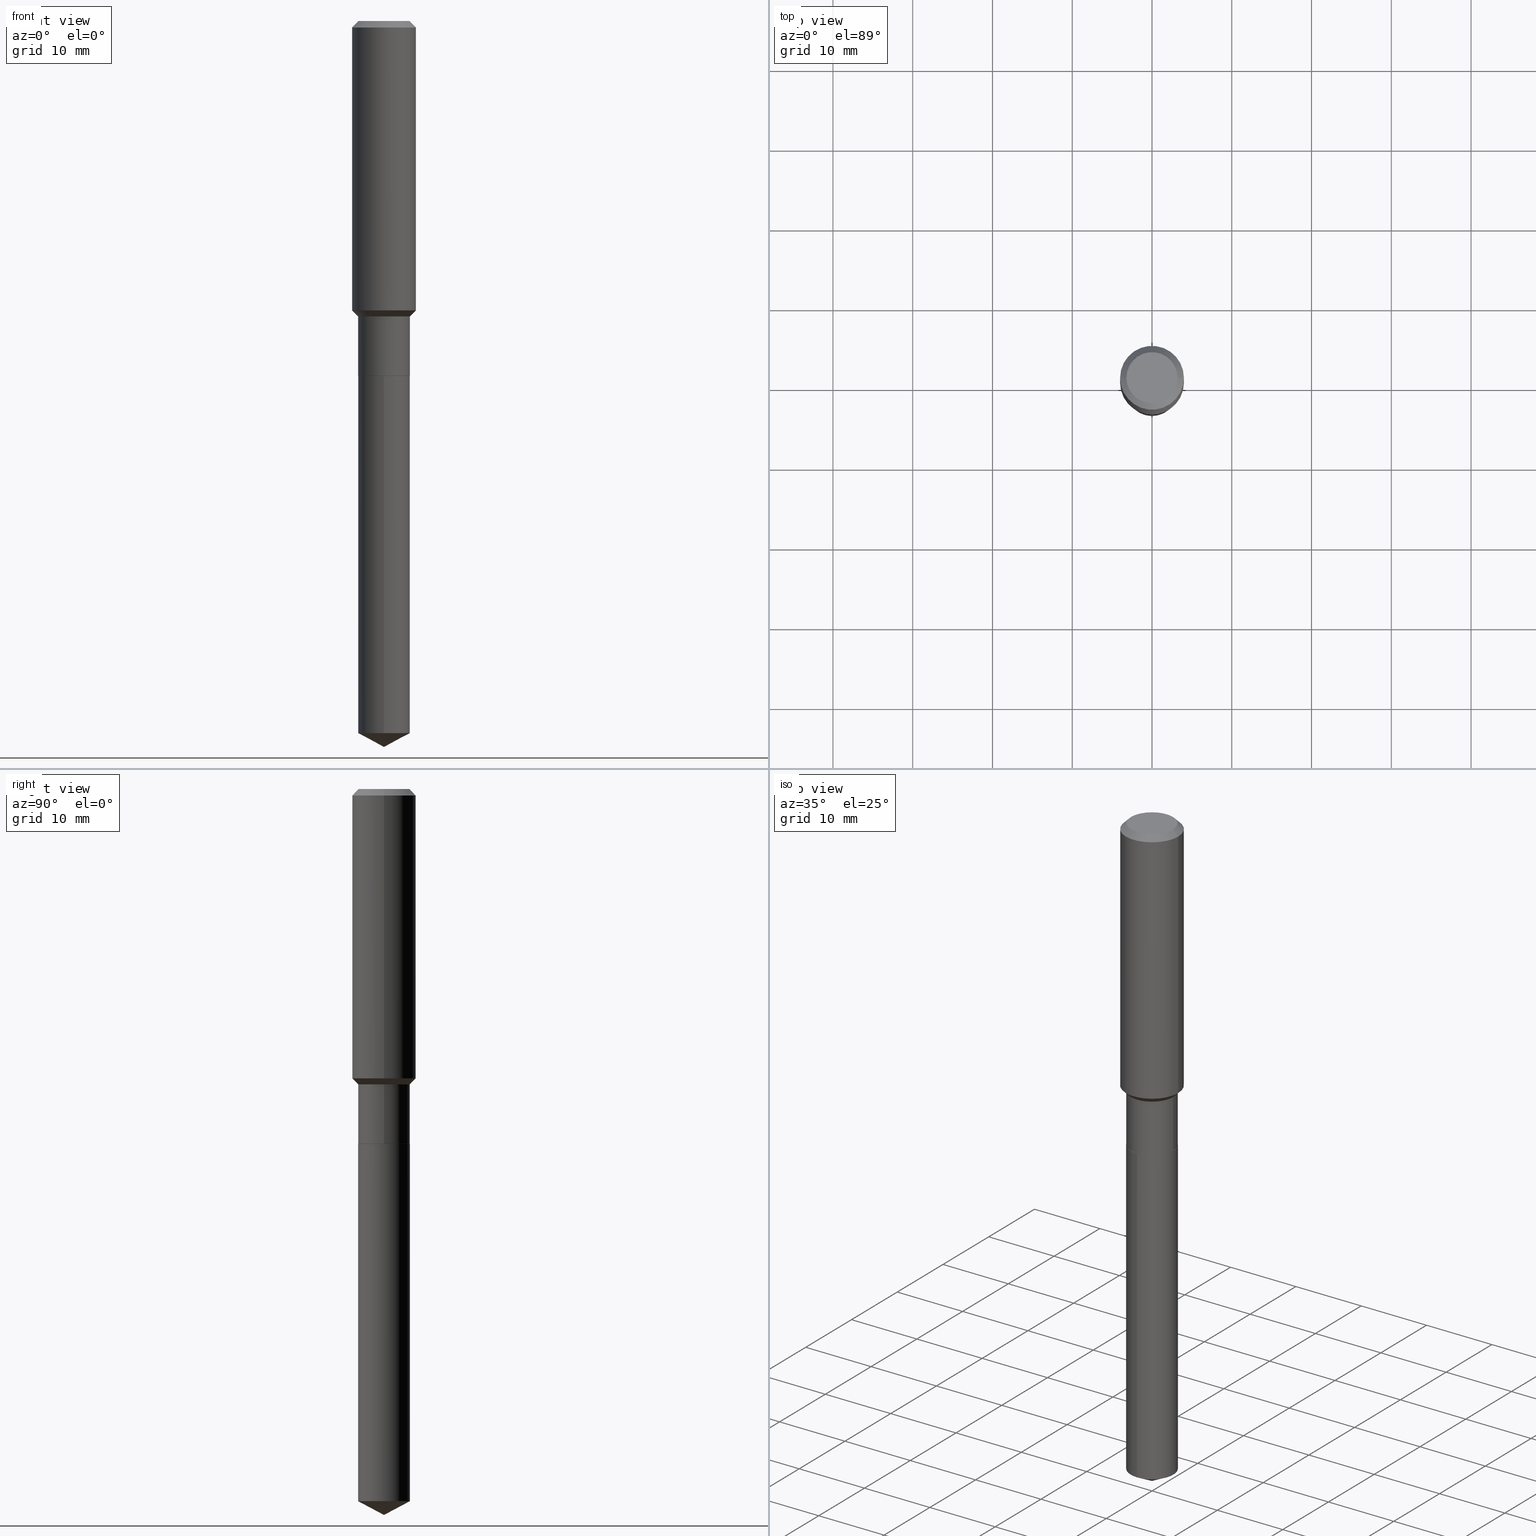
[diagram: canonical four-view strip — front | top / right | iso, engineering-drawing reading convention]
A machine part, canonical four-view strip (front | top / right | iso — engineering-drawing reading convention). The complete STEP part file that produces these views, byte-faithful:
ISO-10303-21;
HEADER;
FILE_DESCRIPTION (( 'STEP AP203' ),
    '1' );
FILE_NAME ('64835.STEP',
    '2024-04-24T19:07:18',
    ( '' ),
    ( '' ),
    'SwSTEP 2.0',
    'SolidWorks 2023',
    '' );
FILE_SCHEMA (( 'CONFIG_CONTROL_DESIGN' ));
ENDSEC;

DATA;
#1 = DIRECTION ( 'NONE',  ( -2.445468806185136597E-29, 3.491481338843145583E-15, 1.000000000000000000 ) ) ;
#2 = ORIENTED_EDGE ( 'NONE', *, *, #210, .F. ) ;
#3 = DIRECTION ( 'NONE',  ( -2.445453981402094289E-29, 3.491502568776236495E-15, 1.000000000000000000 ) ) ;
#4 = VERTEX_POINT ( 'NONE', #270 ) ;
#5 = AXIS2_PLACEMENT_3D ( 'NONE', #290, #214, #324 ) ;
#6 = DIRECTION ( 'NONE',  ( -6.982962677686266711E-15, -1.000000000000000000, 4.270180529369696392E-15 ) ) ;
#7 = ORIENTED_EDGE ( 'NONE', *, *, #29, .F. ) ;
#8 = DATE_TIME_ROLE ( 'classification_date' ) ;
#9 = ADVANCED_FACE ( 'NONE', ( #390 ), #467, .T. ) ;
#10 = ORIENTED_EDGE ( 'NONE', *, *, #163, .T. ) ;
#11 = CC_DESIGN_PERSON_AND_ORGANIZATION_ASSIGNMENT ( #389, #51, ( #105 ) ) ;
#12 = AXIS2_PLACEMENT_3D ( 'NONE', #47, #306, #54 ) ;
#13 = FACE_OUTER_BOUND ( 'NONE', #100, .T. ) ;
#14 = PERSON_AND_ORGANIZATION ( #153, #294 ) ;
#15 = DIRECTION ( 'NONE',  ( 1.000000000000000000, -6.982962677686265922E-15, 0.000000000000000000 ) ) ;
#16 = ADVANCED_FACE ( 'NONE', ( #462 ), #285, .T. ) ;
#17 = PERSON_AND_ORGANIZATION_ROLE ( 'creator' ) ;
#18 = DIRECTION ( 'NONE',  ( 1.000000000000000000, -6.982962677686269866E-15, 0.000000000000000000 ) ) ;
#19 = COORDINATED_UNIVERSAL_TIME_OFFSET ( 5, 0, .BEHIND. ) ;
#20 = CARTESIAN_POINT ( 'NONE',  ( -0.1575000000000000011, -1.429065559299040858E-15, -0.03150000000000019451 ) ) ;
#21 = LINE ( 'NONE', #116, #343 ) ;
#22 = SHAPE_DEFINITION_REPRESENTATION ( #99, #64 ) ;
#23 = LINE ( 'NONE', #475, #319 ) ;
#24 = ORIENTED_EDGE ( 'NONE', *, *, #145, .F. ) ;
#25 = FACE_OUTER_BOUND ( 'NONE', #382, .T. ) ;
#26 = PRODUCT ( '64835', '64835', '', ( #228 ) ) ;
#27 = LINE ( 'NONE', #98, #273 ) ;
#28 = CIRCLE ( 'NONE', #95, 0.1260000000000000009 ) ;
#29 = EDGE_CURVE ( 'NONE', #113, #300, #220, .T. ) ;
#30 = CARTESIAN_POINT ( 'NONE',  ( -0.1279499999999999804, -4.180392917226605207E-15, -1.457700000000000218 ) ) ;
#31 = FACE_OUTER_BOUND ( 'NONE', #109, .T. ) ;
#32 = ORIENTED_EDGE ( 'NONE', *, *, #482, .F. ) ;
#33 = AXIS2_PLACEMENT_3D ( 'NONE', #202, #437, #402 ) ;
#34 = CARTESIAN_POINT ( 'NONE',  ( 8.594984284570985817E-29, -1.227143438120363125E-14, -3.514667778218913963 ) ) ;
#35 = EDGE_LOOP ( 'NONE', ( #10, #340, #104, #2 ) ) ;
#36 = DIRECTION ( 'NONE',  ( 2.445468806185136597E-29, -3.491481338843145583E-15, -1.000000000000000000 ) ) ;
#37 = ORIENTED_EDGE ( 'NONE', *, *, #334, .F. ) ;
#38 = AXIS2_PLACEMENT_3D ( 'NONE', #268, #310, #385 ) ;
#39 = FACE_OUTER_BOUND ( 'NONE', #120, .T. ) ;
#40 = ORIENTED_EDGE ( 'NONE', *, *, #447, .T. ) ;
#41 = EDGE_CURVE ( 'NONE', #289, #460, #206, .T. ) ;
#42 = CONICAL_SURFACE ( 'NONE', #33, 0.1279499999999999804, 0.7853981633974520538 ) ;
#43 = EDGE_CURVE ( 'NONE', #168, #322, #464, .T. ) ;
#44 = PERSON_AND_ORGANIZATION_ROLE ( 'design_supplier' ) ;
#45 = ORIENTED_EDGE ( 'NONE', *, *, #263, .T. ) ;
#46 = CARTESIAN_POINT ( 'NONE',  ( 0.000000000000000000, 0.000000000000000000, 0.000000000000000000 ) ) ;
#47 = CARTESIAN_POINT ( 'NONE',  ( 3.492496275553303291E-29, -4.986359074068839042E-15, -1.428150000000000253 ) ) ;
#48 = DATE_AND_TIME ( #433, #456 ) ;
#49 = ORIENTED_EDGE ( 'NONE', *, *, #353, .T. ) ;
#50 = CC_DESIGN_PERSON_AND_ORGANIZATION_ASSIGNMENT ( #344, #428, ( #26 ) ) ;
#51 = PERSON_AND_ORGANIZATION_ROLE ( 'creator' ) ;
#52 = CIRCLE ( 'NONE', #209, 0.1279500000000000082 ) ;
#53 = CARTESIAN_POINT ( 'NONE',  ( -0.1260000000000000009, 9.348441284752484904E-16, 3.860086710906114178E-18 ) ) ;
#54 = DIRECTION ( 'NONE',  ( 1.000000000000000000, -6.982962677686267499E-15, 0.000000000000000000 ) ) ;
#55 = CARTESIAN_POINT ( 'NONE',  ( 0.1279499999999999804, -5.983002422241610534E-15, -1.457700000000000218 ) ) ;
#56 = EDGE_CURVE ( 'NONE', #337, #134, #277, .T. ) ;
#57 = DIRECTION ( 'NONE',  ( -2.445453981402094289E-29, 3.491502568776236889E-15, 1.000000000000000000 ) ) ;
#58 = CARTESIAN_POINT ( 'NONE',  ( 4.284461348436360250E-29, -6.117075305653192263E-15, -1.752000000000000224 ) ) ;
#59 = ORIENTED_EDGE ( 'NONE', *, *, #126, .F. ) ;
#60 = DIRECTION ( 'NONE',  ( -2.445468806185136877E-29, 3.491481338843145188E-15, 1.000000000000000000 ) ) ;
#61 = EDGE_CURVE ( 'NONE', #289, #113, #197, .T. ) ;
#62 = DIRECTION ( 'NONE',  ( 6.982962677686265922E-15, 1.000000000000000000, -3.491502568776236889E-15 ) ) ;
#63 = CARTESIAN_POINT ( 'NONE',  ( 8.761327979169282091E-29, -1.250900625315462083E-14, -3.582699999999999996 ) ) ;
#64 = ADVANCED_BREP_SHAPE_REPRESENTATION ( '64835', ( #414, #84, #201 ), #241 ) ;
#65 = VERTEX_POINT ( 'NONE', #53 ) ;
#66 = CIRCLE ( 'NONE', #387, 0.1260000000000000009 ) ;
#67 = FACE_OUTER_BOUND ( 'NONE', #380, .T. ) ;
#68 = CIRCLE ( 'NONE', #326, 0.1279499999999999804 ) ;
#69 = ORIENTED_EDGE ( 'NONE', *, *, #43, .T. ) ;
#70 = AXIS2_PLACEMENT_3D ( 'NONE', #34, #218, #258 ) ;
#71 = DIRECTION ( 'NONE',  ( 1.000000000000000000, -6.982962677686267499E-15, 0.000000000000000000 ) ) ;
#72 = VERTEX_POINT ( 'NONE', #434 ) ;
#73 = DIRECTION ( 'NONE',  ( 2.438088387897960049E-29, -3.491481338843145188E-15, -1.000000000000000000 ) ) ;
#74 = ORIENTED_EDGE ( 'NONE', *, *, #174, .T. ) ;
#75 = CC_DESIGN_DATE_AND_TIME_ASSIGNMENT ( #471, #8, ( #234 ) ) ;
#76 = EDGE_CURVE ( 'NONE', #256, #337, #429, .T. ) ;
#77 = CARTESIAN_POINT ( 'NONE',  ( -4.719860820353100843E-47, 6.738710358733633822E-33, 1.930043355456229866E-18 ) ) ;
#78 = ORIENTED_EDGE ( 'NONE', *, *, #232, .F. ) ;
#79 = CIRCLE ( 'NONE', #117, 0.1575000000000001676 ) ;
#80 = CARTESIAN_POINT ( 'NONE',  ( -0.1575000000000000011, 9.898349595620272334E-16, -0.03150000000000019451 ) ) ;
#81 = DIRECTION ( 'NONE',  ( -2.445468806185136597E-29, 3.491481338843145583E-15, 1.000000000000000000 ) ) ;
#82 = CLOSED_SHELL ( 'NONE', ( #468, #408, #191, #247, #432, #127, #224, #96, #16, #417, #183, #354 ) ) ;
#83 = APPROVAL_STATUS ( 'not_yet_approved' ) ;
#84 = MANIFOLD_SOLID_BREP ( 'Body-Move/Copy2[2]', #82 ) ;
#85 = CARTESIAN_POINT ( 'NONE',  ( 4.283238614033268009E-29, -6.115329564983771548E-15, -1.751500000000000501 ) ) ;
#86 = CALENDAR_DATE ( 2024, 24, 4 ) ;
#87 = CC_DESIGN_APPROVAL ( #160, ( #105 ) ) ;
#88 = CARTESIAN_POINT ( 'NONE',  ( 3.564759878776074518E-29, -5.089532347631653453E-15, -1.457700000000000218 ) ) ;
#89 = PERSON_AND_ORGANIZATION ( #153, #294 ) ;
#90 = CARTESIAN_POINT ( 'NONE',  ( 8.761380380714512831E-29, -1.250893186346907260E-14, -3.582699999999999996 ) ) ;
#91 = EDGE_CURVE ( 'NONE', #256, #72, #237, .T. ) ;
#92 = EDGE_CURVE ( 'NONE', #282, #300, #159, .T. ) ;
#93 = LINE ( 'NONE', #478, #345 ) ;
#94 = DIRECTION ( 'NONE',  ( 1.000000000000000000, -6.982962677686265922E-15, 4.876176775795935793E-29 ) ) ;
#95 = AXIS2_PLACEMENT_3D ( 'NONE', #381, #143, #106 ) ;
#96 = ADVANCED_FACE ( 'NONE', ( #470 ), #122, .T. ) ;
#97 = DIRECTION ( 'NONE',  ( -2.445468806185136597E-29, 3.491481338843145583E-15, 1.000000000000000000 ) ) ;
#98 = CARTESIAN_POINT ( 'NONE',  ( 0.1279500000000000082, -8.934700746099578698E-16, 6.239068184630899488E-30 ) ) ;
#99 = PRODUCT_DEFINITION_SHAPE ( 'NONE', 'NONE',  #105 ) ;
#100 = EDGE_LOOP ( 'NONE', ( #333, #246, #131, #458 ) ) ;
#101 = CARTESIAN_POINT ( 'NONE',  ( 0.1575000000000000844, -1.099816621735587677E-15, 7.679978421878603638E-30 ) ) ;
#102 = AXIS2_PLACEMENT_3D ( 'NONE', #77, #73, #485 ) ;
#103 = DIRECTION ( 'NONE',  ( -6.982962677686266711E-15, -1.000000000000000000, 4.270180529369696392E-15 ) ) ;
#104 = ORIENTED_EDGE ( 'NONE', *, *, #445, .F. ) ;
#105 = PRODUCT_DEFINITION ( 'UNKNOWN', '', #328, #155 ) ;
#106 = DIRECTION ( 'NONE',  ( 1.000000000000000000, -6.982962677686265922E-15, 4.876281427513067258E-29 ) ) ;
#107 = ORIENTED_EDGE ( 'NONE', *, *, #313, .F. ) ;
#108 = DIRECTION ( 'NONE',  ( -6.982962677686266711E-15, -1.000000000000000000, 3.541896320645561263E-15 ) ) ;
#109 = EDGE_LOOP ( 'NONE', ( #193, #293, #455, #222 ) ) ;
#110 = CONICAL_SURFACE ( 'NONE', #450, 74.04434902938352536, 1.082104136236486491 ) ;
#111 = CARTESIAN_POINT ( 'NONE',  ( 4.283238614033268009E-29, -6.115329564983771548E-15, -1.751500000000000501 ) ) ;
#112 = CC_DESIGN_PERSON_AND_ORGANIZATION_ASSIGNMENT ( #469, #299, ( #234 ) ) ;
#113 = VERTEX_POINT ( 'NONE', #20 ) ;
#114 = DIRECTION ( 'NONE',  ( 1.000000000000000000, -6.982962677686266711E-15, 4.876176775795935232E-29 ) ) ;
#115 = EDGE_LOOP ( 'NONE', ( #59, #251, #261, #24 ) ) ;
#116 = CARTESIAN_POINT ( 'NONE',  ( -0.1274500000000000077, -5.211488588926944916E-15, -1.752000000000000224 ) ) ;
#117 = AXIS2_PLACEMENT_3D ( 'NONE', #332, #370, #71 ) ;
#118 = COORDINATED_UNIVERSAL_TIME_OFFSET ( 5, 0, .BEHIND. ) ;
#119 = ORIENTED_EDGE ( 'NONE', *, *, #269, .F. ) ;
#120 = EDGE_LOOP ( 'NONE', ( #418, #189, #446, #173 ) ) ;
#121 = COORDINATED_UNIVERSAL_TIME_OFFSET ( 5, 0, .BEHIND. ) ;
#122 = CYLINDRICAL_SURFACE ( 'NONE', #476, 0.1575000000000000844 ) ;
#123 = APPLICATION_CONTEXT ( 'configuration controlled 3d designs of mechanical parts and assemblies' ) ;
#124 = DATE_TIME_ROLE ( 'creation_date' ) ;
#125 = DIRECTION ( 'NONE',  ( 1.000000000000000000, -6.982962677686265922E-15, 4.876281427513067258E-29 ) ) ;
#126 = EDGE_CURVE ( 'NONE', #282, #65, #66, .T. ) ;
#127 = ADVANCED_FACE ( 'NONE', ( #13 ), #396, .T. ) ;
#128 = FACE_OUTER_BOUND ( 'NONE', #254, .T. ) ;
#129 = CARTESIAN_POINT ( 'NONE',  ( -8.751636185104288429E-28, 1.249517619958706967E-13, 35.78737874015747877 ) ) ;
#130 = AXIS2_PLACEMENT_3D ( 'NONE', #303, #97, #243 ) ;
#131 = ORIENTED_EDGE ( 'NONE', *, *, #296, .T. ) ;
#132 = DIRECTION ( 'NONE',  ( 1.000000000000000000, -6.982962677686263555E-15, 0.000000000000000000 ) ) ;
#133 = CIRCLE ( 'NONE', #148, 0.1279500000000000082 ) ;
#134 = VERTEX_POINT ( 'NONE', #55 ) ;
#135 = DIRECTION ( 'NONE',  ( -6.165590087286835240E-15, -0.8829475928589263223, 0.4694715627858919715 ) ) ;
#136 = CYLINDRICAL_SURFACE ( 'NONE', #233, 0.1575000000000000844 ) ;
#137 = AXIS2_PLACEMENT_3D ( 'NONE', #88, #81, #351 ) ;
#138 = CARTESIAN_POINT ( 'NONE',  ( 8.594984284570985817E-29, -1.227143438120363125E-14, -3.514667778218913963 ) ) ;
#139 = EDGE_CURVE ( 'NONE', #4, #256, #21, .T. ) ;
#140 = CIRCLE ( 'NONE', #70, 0.1279500000000000082 ) ;
#141 = CARTESIAN_POINT ( 'NONE',  ( 7.703226739483228723E-31, -1.099816621735597661E-16, -0.03150000000000019451 ) ) ;
#142 = ORIENTED_EDGE ( 'NONE', *, *, #91, .F. ) ;
#143 = DIRECTION ( 'NONE',  ( -2.445468806185136597E-29, 3.491481338843145583E-15, 1.000000000000000000 ) ) ;
#144 = ORIENTED_EDGE ( 'NONE', *, *, #263, .F. ) ;
#145 = EDGE_CURVE ( 'NONE', #65, #113, #425, .T. ) ;
#146 = PLANE ( 'NONE',  #102 ) ;
#147 = VERTEX_POINT ( 'NONE', #342 ) ;
#148 = AXIS2_PLACEMENT_3D ( 'NONE', #138, #330, #419 ) ;
#149 = CARTESIAN_POINT ( 'NONE',  ( 4.284461348436360250E-29, -6.117075305653192263E-15, -1.752000000000000224 ) ) ;
#150 = ORIENTED_EDGE ( 'NONE', *, *, #61, .T. ) ;
#151 = APPROVAL_ROLE ( '' ) ;
#152 = EDGE_LOOP ( 'NONE', ( #413, #479 ) ) ;
#153 = PERSON ( 'UNSPECIFIED', 'UNSPECIFIED', 'UNSPECIFIED', ('UNSPECIFIED'), ('UNSPECIFIED'), ('UNSPECIFIED') ) ;
#154 = APPLICATION_PROTOCOL_DEFINITION ( 'international standard', 'config_control_design', 1994, #238 ) ;
#155 = DESIGN_CONTEXT ( 'detailed design', #238, 'design' ) ;
#156 = DIRECTION ( 'NONE',  ( -0.7071067811865451302, 2.468850131082231817E-15, -0.7071067811865499042 ) ) ;
#157 = DIRECTION ( 'NONE',  ( -6.982962677686266711E-15, -1.000000000000000000, 4.270180529369696392E-15 ) ) ;
#158 = CALENDAR_DATE ( 2024, 24, 4 ) ;
#159 = LINE ( 'NONE', #166, #397 ) ;
#160 = APPROVAL ( #83, 'UNSPECIFIED' ) ;
#161 =( NAMED_UNIT ( * ) PLANE_ANGLE_UNIT ( ) SI_UNIT ( $, .RADIAN. ) );
#162 = VECTOR ( 'NONE', #248, 39.37007874015748143 ) ;
#163 = EDGE_CURVE ( 'NONE', #406, #4, #436, .T. ) ;
#164 = CARTESIAN_POINT ( 'NONE',  ( 0.000000000000000000, 0.000000000000000000, 0.000000000000000000 ) ) ;
#165 = CIRCLE ( 'NONE', #448, 0.1279500000000000082 ) ;
#166 = CARTESIAN_POINT ( 'NONE',  ( 0.1575000000000000011, -1.190510096822576026E-15, -0.03150000000000019451 ) ) ;
#167 = LINE ( 'NONE', #281, #297 ) ;
#168 = VERTEX_POINT ( 'NONE', #63 ) ;
#169 = PLANE ( 'NONE',  #412 ) ;
#170 = DIRECTION ( 'NONE',  ( -2.445468806185136597E-29, 3.491481338843145583E-15, 1.000000000000000000 ) ) ;
#171 = AXIS2_PLACEMENT_3D ( 'NONE', #149, #287, #409 ) ;
#172 = CARTESIAN_POINT ( 'NONE',  ( 9.091394304050910416E-16, 0.1279499999999939019, -1.752000000000000890 ) ) ;
#173 = ORIENTED_EDGE ( 'NONE', *, *, #296, .F. ) ;
#174 = EDGE_CURVE ( 'NONE', #337, #289, #398, .T. ) ;
#175 = DIRECTION ( 'NONE',  ( 1.000000000000000000, -6.982962677686265922E-15, 0.000000000000000000 ) ) ;
#176 = CC_DESIGN_DATE_AND_TIME_ASSIGNMENT ( #264, #124, ( #105 ) ) ;
#177 = AXIS2_PLACEMENT_3D ( 'NONE', #164, #274, #236 ) ;
#178 = CARTESIAN_POINT ( 'NONE',  ( 4.284461348436360250E-29, -6.117075305653192263E-15, -1.752000000000000224 ) ) ;
#179 = ORIENTED_EDGE ( 'NONE', *, *, #362, .F. ) ;
#180 = CIRCLE ( 'NONE', #5, 0.1274500000000000077 ) ;
#181 = CARTESIAN_POINT ( 'NONE',  ( -0.1279499999999999804, -4.693291525902664255E-15, -1.457700000000000218 ) ) ;
#182 = ORIENTED_EDGE ( 'NONE', *, *, #283, .T. ) ;
#183 = ADVANCED_FACE ( 'NONE', ( #239 ), #169, .F. ) ;
#184 = DIRECTION ( 'NONE',  ( -1.000000000000000000, 6.982962677686265922E-15, 0.000000000000000000 ) ) ;
#185 = ORIENTED_EDGE ( 'NONE', *, *, #29, .T. ) ;
#186 = FACE_OUTER_BOUND ( 'NONE', #35, .T. ) ;
#187 = ORIENTED_EDGE ( 'NONE', *, *, #353, .F. ) ;
#188 = LOCAL_TIME ( 15, 7, 18.00000000000000000, #121 ) ;
#189 = ORIENTED_EDGE ( 'NONE', *, *, #76, .T. ) ;
#190 =( CONVERSION_BASED_UNIT ( 'INCH', #230 ) LENGTH_UNIT ( ) NAMED_UNIT ( #488 ) );
#191 = ADVANCED_FACE ( 'NONE', ( #366 ), #136, .T. ) ;
#192 = DIRECTION ( 'NONE',  ( -2.445468806185136597E-29, 3.491481338843145583E-15, 1.000000000000000000 ) ) ;
#193 = ORIENTED_EDGE ( 'NONE', *, *, #174, .F. ) ;
#194 = APPROVAL_PERSON_ORGANIZATION ( #302, #160, #392 ) ;
#195 = APPROVAL_DATE_TIME ( #48, #463 ) ;
#196 = CC_DESIGN_SECURITY_CLASSIFICATION ( #234, ( #328 ) ) ;
#197 = LINE ( 'NONE', #229, #301 ) ;
#198 = ADVANCED_FACE ( 'NONE', ( #25 ), #110, .T. ) ;
#199 = DIRECTION ( 'NONE',  ( 6.273719981627764499E-15, 0.8829475928589295419, 0.4694715627858856433 ) ) ;
#200 = DIRECTION ( 'NONE',  ( -2.445453981402094289E-29, 3.491502568776236495E-15, 1.000000000000000000 ) ) ;
#201 = AXIS2_PLACEMENT_3D ( 'NONE', #46, #305, #466 ) ;
#202 = CARTESIAN_POINT ( 'NONE',  ( 3.564759878776074518E-29, -5.089532347631653453E-15, -1.457700000000000218 ) ) ;
#203 = EDGE_LOOP ( 'NONE', ( #215, #368 ) ) ;
#204 = CARTESIAN_POINT ( 'NONE',  ( 4.284461348436360250E-29, -6.117075305653192263E-15, -1.752000000000000224 ) ) ;
#205 = ORIENTED_EDGE ( 'NONE', *, *, #245, .T. ) ;
#206 = CIRCLE ( 'NONE', #12, 0.1575000000000001676 ) ;
#207 = DIRECTION ( 'NONE',  ( 0.7071067811865501263, -2.468850131082283882E-15, 0.7071067811865449082 ) ) ;
#208 = CARTESIAN_POINT ( 'NONE',  ( 0.1575000000000000011, -1.209798283909146741E-15, -0.03150000000000019451 ) ) ;
#209 = AXIS2_PLACEMENT_3D ( 'NONE', #454, #3, #6 ) ;
#210 = EDGE_CURVE ( 'NONE', #406, #72, #93, .T. ) ;
#211 = DIRECTION ( 'NONE',  ( -2.445468806185136597E-29, 3.491481338843145583E-15, 1.000000000000000000 ) ) ;
#212 = CYLINDRICAL_SURFACE ( 'NONE', #347, 0.1279500000000000082 ) ;
#213 = ORIENTED_EDGE ( 'NONE', *, *, #283, .F. ) ;
#214 = DIRECTION ( 'NONE',  ( -2.445468806185136597E-29, 3.491481338843145583E-15, 1.000000000000000000 ) ) ;
#215 = ORIENTED_EDGE ( 'NONE', *, *, #334, .T. ) ;
#216 = FACE_OUTER_BOUND ( 'NONE', #115, .T. ) ;
#217 = EDGE_LOOP ( 'NONE', ( #107, #423, #401, #187 ) ) ;
#218 = DIRECTION ( 'NONE',  ( -2.445453981402094289E-29, 3.491502568776236495E-15, 1.000000000000000000 ) ) ;
#219 = EDGE_LOOP ( 'NONE', ( #291, #150, #420, #144 ) ) ;
#220 = CIRCLE ( 'NONE', #262, 0.1575000000000000011 ) ;
#221 = DIRECTION ( 'NONE',  ( -2.445468806185136597E-29, 3.491481338843145583E-15, 1.000000000000000000 ) ) ;
#222 = ORIENTED_EDGE ( 'NONE', *, *, #41, .F. ) ;
#223 = AXIS2_PLACEMENT_3D ( 'NONE', #58, #358, #62 ) ;
#224 = ADVANCED_FACE ( 'NONE', ( #31 ), #227, .T. ) ;
#225 = CALENDAR_DATE ( 2024, 24, 4 ) ;
#226 = DIRECTION ( 'NONE',  ( -2.445468806185136597E-29, 3.491481338843145583E-15, 1.000000000000000000 ) ) ;
#227 = CONICAL_SURFACE ( 'NONE', #377, 0.1279499999999999804, 0.7853981633974520538 ) ;
#228 = MECHANICAL_CONTEXT ( 'NONE', #123, 'mechanical' ) ;
#229 = CARTESIAN_POINT ( 'NONE',  ( -0.1575000000000000844, 1.119104808822158392E-15, -7.747322767151481189E-30 ) ) ;
#230 = LENGTH_MEASURE_WITH_UNIT ( LENGTH_MEASURE( 0.02539999999999999897 ), #327 );
#231 = ORIENTED_EDGE ( 'NONE', *, *, #313, .T. ) ;
#232 = EDGE_CURVE ( 'NONE', #329, #259, #167, .T. ) ;
#233 = AXIS2_PLACEMENT_3D ( 'NONE', #441, #405, #278 ) ;
#234 = SECURITY_CLASSIFICATION ( '', '', #307 ) ;
#235 = CARTESIAN_POINT ( 'NONE',  ( -0.1279500000000000082, 9.091394304050482459E-16, -6.293777447981151559E-30 ) ) ;
#236 = DIRECTION ( 'NONE',  ( 1.000000000000000000, -6.982962677686266711E-15, 4.876176775795935232E-29 ) ) ;
#237 = CIRCLE ( 'NONE', #323, 0.1279500000000000082 ) ;
#238 = APPLICATION_CONTEXT ( 'configuration controlled 3d designs of mechanical parts and assemblies' ) ;
#239 = FACE_OUTER_BOUND ( 'NONE', #152, .T. ) ;
#240 = EDGE_LOOP ( 'NONE', ( #40, #231, #32, #78 ) ) ;
#241 =( GEOMETRIC_REPRESENTATION_CONTEXT ( 3 ) GLOBAL_UNCERTAINTY_ASSIGNED_CONTEXT ( ( #442 ) ) GLOBAL_UNIT_ASSIGNED_CONTEXT ( ( #190, #161, #341 ) ) REPRESENTATION_CONTEXT ( 'NONE', 'WORKASPACE' ) );
#242 = CARTESIAN_POINT ( 'NONE',  ( -0.1279500000000000359, -4.693291525902664255E-15, -1.751500000000000501 ) ) ;
#243 = DIRECTION ( 'NONE',  ( 1.000000000000000000, -6.982962677686264344E-15, 0.000000000000000000 ) ) ;
#244 = DIRECTION ( 'NONE',  ( -6.982962677686266711E-15, -1.000000000000000000, 3.541896320645561263E-15 ) ) ;
#246 = ORIENTED_EDGE ( 'NONE', *, *, #91, .T. ) ;
#245 = EDGE_CURVE ( 'NONE', #134, #337, #68, .T. ) ;
#247 = ADVANCED_FACE ( 'NONE', ( #440 ), #42, .T. ) ;
#248 = DIRECTION ( 'NONE',  ( -0.7071067811865501263, 7.493145998870363626E-15, 0.7071067811865449082 ) ) ;
#249 = LOCAL_TIME ( 15, 7, 18.00000000000000000, #461 ) ;
#250 = DIRECTION ( 'NONE',  ( -2.445453981402094289E-29, 3.491502568776236495E-15, 1.000000000000000000 ) ) ;
#251 = ORIENTED_EDGE ( 'NONE', *, *, #92, .T. ) ;
#252 = CLOSED_SHELL ( 'NONE', ( #335, #198, #317, #9, #276 ) ) ;
#253 = CARTESIAN_POINT ( 'NONE',  ( 4.284461348436360250E-29, -6.117075305653192263E-15, -1.752000000000000224 ) ) ;
#254 = EDGE_LOOP ( 'NONE', ( #374, #182, #315 ) ) ;
#255 = CARTESIAN_POINT ( 'NONE',  ( 9.091394304051342317E-16, 0.1279499999999877680, -3.514667778218914851 ) ) ;
#256 = VERTEX_POINT ( 'NONE', #242 ) ;
#257 = AXIS2_PLACEMENT_3D ( 'NONE', #489, #1, #336 ) ;
#258 = DIRECTION ( 'NONE',  ( -6.982962677686266711E-15, -1.000000000000000000, 4.270180529369696392E-15 ) ) ;
#259 = VERTEX_POINT ( 'NONE', #361 ) ;
#260 = DIRECTION ( 'NONE',  ( -2.445453981402094289E-29, 3.491502568776236495E-15, 1.000000000000000000 ) ) ;
#261 = ORIENTED_EDGE ( 'NONE', *, *, #395, .T. ) ;
#262 = AXIS2_PLACEMENT_3D ( 'NONE', #427, #226, #15 ) ;
#263 = EDGE_CURVE ( 'NONE', #460, #300, #435, .T. ) ;
#264 = DATE_AND_TIME ( #158, #487 ) ;
#265 = DIRECTION ( 'NONE',  ( -0.7071067811866320607, 7.493145998870660238E-15, 0.7071067811864629737 ) ) ;
#266 = CONICAL_SURFACE ( 'NONE', #257, 0.1274500000000000077, 0.7853981633975678500 ) ;
#267 = DATE_AND_TIME ( #386, #480 ) ;
#268 = CARTESIAN_POINT ( 'NONE',  ( 7.703226739483228723E-31, -1.099816621735597661E-16, -0.03150000000000019451 ) ) ;
#269 = EDGE_CURVE ( 'NONE', #134, #460, #312, .T. ) ;
#270 = CARTESIAN_POINT ( 'NONE',  ( -0.1274500000000000077, -5.208839361752833715E-15, -1.752000000000000224 ) ) ;
#271 = APPROVAL_DATE_TIME ( #267, #160 ) ;
#272 = DIRECTION ( 'NONE',  ( -2.445468806185136597E-29, 3.491481338843145583E-15, 1.000000000000000000 ) ) ;
#273 = VECTOR ( 'NONE', #320, 39.37007874015748143 ) ;
#274 = DIRECTION ( 'NONE',  ( -2.445468806185136597E-29, 3.491481338843145583E-15, 1.000000000000000000 ) ) ;
#275 = FACE_OUTER_BOUND ( 'NONE', #331, .T. ) ;
#276 = ADVANCED_FACE ( 'NONE', ( #275 ), #314, .F. ) ;
#277 = CIRCLE ( 'NONE', #137, 0.1279499999999999804 ) ;
#278 = DIRECTION ( 'NONE',  ( 1.000000000000000000, -6.982962677686267499E-15, 4.876176775795936353E-29 ) ) ;
#279 = ORIENTED_EDGE ( 'NONE', *, *, #482, .T. ) ;
#280 = CIRCLE ( 'NONE', #356, 0.1279500000000000082 ) ;
#281 = CARTESIAN_POINT ( 'NONE',  ( -8.934700746099150741E-16, -0.1279500000000061144, -1.751999999999999780 ) ) ;
#282 = VERTEX_POINT ( 'NONE', #364 ) ;
#283 = EDGE_CURVE ( 'NONE', #168, #329, #23, .T. ) ;
#284 = CARTESIAN_POINT ( 'NONE',  ( 3.564759878776074518E-29, -5.089532347631653453E-15, -1.457700000000000218 ) ) ;
#285 = CONICAL_SURFACE ( 'NONE', #38, 0.1575000000000000011, 0.7853981633974449483 ) ;
#286 = DIRECTION ( 'NONE',  ( 1.000000000000000000, -6.982962677686263555E-15, 0.000000000000000000 ) ) ;
#287 = DIRECTION ( 'NONE',  ( -2.445468806185136597E-29, 3.491481338843145583E-15, 1.000000000000000000 ) ) ;
#288 = FACE_OUTER_BOUND ( 'NONE', #203, .T. ) ;
#289 = VERTEX_POINT ( 'NONE', #474 ) ;
#290 = CARTESIAN_POINT ( 'NONE',  ( 4.284461348436360250E-29, -6.117075305653192263E-15, -1.752000000000000224 ) ) ;
#291 = ORIENTED_EDGE ( 'NONE', *, *, #362, .T. ) ;
#292 = CARTESIAN_POINT ( 'NONE',  ( 7.703226739483228723E-31, -1.099816621735597661E-16, -0.03150000000000019451 ) ) ;
#293 = ORIENTED_EDGE ( 'NONE', *, *, #56, .T. ) ;
#294 = ORGANIZATION ( 'UNSPECIFIED', 'UNSPECIFIED', '' ) ;
#295 = FACE_OUTER_BOUND ( 'NONE', #240, .T. ) ;
#296 = EDGE_CURVE ( 'NONE', #72, #134, #27, .T. ) ;
#297 = VECTOR ( 'NONE', #57, 39.37007874015748143 ) ;
#298 = ORIENTED_EDGE ( 'NONE', *, *, #210, .T. ) ;
#299 = PERSON_AND_ORGANIZATION_ROLE ( 'classification_officer' ) ;
#300 = VERTEX_POINT ( 'NONE', #208 ) ;
#301 = VECTOR ( 'NONE', #388, 39.37007874015748143 ) ;
#302 = PERSON_AND_ORGANIZATION ( #153, #294 ) ;
#303 = CARTESIAN_POINT ( 'NONE',  ( 4.284461348436360250E-29, -6.117075305653192263E-15, -1.752000000000000224 ) ) ;
#304 = AXIS2_PLACEMENT_3D ( 'NONE', #444, #250, #108 ) ;
#305 = DIRECTION ( 'NONE',  ( 0.000000000000000000, 0.000000000000000000, 1.000000000000000000 ) ) ;
#306 = DIRECTION ( 'NONE',  ( -2.445468806185136597E-29, 3.491481338843145583E-15, 1.000000000000000000 ) ) ;
#307 = SECURITY_CLASSIFICATION_LEVEL ( 'unclassified' ) ;
#308 = DIRECTION ( 'NONE',  ( 0.7071067811865451302, -7.319954787623248157E-15, -0.7071067811865499042 ) ) ;
#309 = APPLICATION_PROTOCOL_DEFINITION ( 'international standard', 'config_control_design', 1994, #123 ) ;
#310 = DIRECTION ( 'NONE',  ( 2.445468806185136597E-29, -3.491481338843145583E-15, -1.000000000000000000 ) ) ;
#311 = CIRCLE ( 'NONE', #373, 0.1575000000000000011 ) ;
#312 = LINE ( 'NONE', #400, #383 ) ;
#313 = EDGE_CURVE ( 'NONE', #322, #147, #481, .T. ) ;
#314 = PLANE ( 'NONE',  #223 ) ;
#315 = ORIENTED_EDGE ( 'NONE', *, *, #453, .F. ) ;
#316 = DIRECTION ( 'NONE',  ( -2.445453981402094289E-29, 3.491502568776236495E-15, 1.000000000000000000 ) ) ;
#317 = ADVANCED_FACE ( 'NONE', ( #128 ), #338, .T. ) ;
#318 = AXIS2_PLACEMENT_3D ( 'NONE', #141, #36, #184 ) ;
#319 = VECTOR ( 'NONE', #135, 39.37007874015748143 ) ;
#320 = DIRECTION ( 'NONE',  ( -2.445468806185136877E-29, 3.491481338843145188E-15, 1.000000000000000000 ) ) ;
#321 = DIRECTION ( 'NONE',  ( -2.438088387897960049E-29, 3.491481338843145188E-15, 1.000000000000000000 ) ) ;
#322 = VERTEX_POINT ( 'NONE', #255 ) ;
#323 = AXIS2_PLACEMENT_3D ( 'NONE', #85, #346, #18 ) ;
#324 = DIRECTION ( 'NONE',  ( 1.000000000000000000, -6.982962677686264344E-15, 0.000000000000000000 ) ) ;
#325 = ORIENTED_EDGE ( 'NONE', *, *, #61, .F. ) ;
#326 = AXIS2_PLACEMENT_3D ( 'NONE', #284, #211, #132 ) ;
#327 =( LENGTH_UNIT ( ) NAMED_UNIT ( * ) SI_UNIT ( $, .METRE. ) );
#328 = PRODUCT_DEFINITION_FORMATION_WITH_SPECIFIED_SOURCE ( 'ANY', '', #26, .NOT_KNOWN. ) ;
#329 = VERTEX_POINT ( 'NONE', #372 ) ;
#330 = DIRECTION ( 'NONE',  ( -2.445453981402094289E-29, 3.491502568776236495E-15, 1.000000000000000000 ) ) ;
#331 = EDGE_LOOP ( 'NONE', ( #279, #49 ) ) ;
#332 = CARTESIAN_POINT ( 'NONE',  ( 3.492496275553303291E-29, -4.986359074068839042E-15, -1.428150000000000253 ) ) ;
#333 = ORIENTED_EDGE ( 'NONE', *, *, #76, .F. ) ;
#334 = EDGE_CURVE ( 'NONE', #65, #282, #28, .T. ) ;
#335 = ADVANCED_FACE ( 'NONE', ( #295 ), #212, .T. ) ;
#336 = DIRECTION ( 'NONE',  ( 1.000000000000000000, -6.982962677686264344E-15, 0.000000000000000000 ) ) ;
#337 = VERTEX_POINT ( 'NONE', #181 ) ;
#338 = CONICAL_SURFACE ( 'NONE', #304, 74.04434902938352536, 1.082104136236486491 ) ;
#339 = PERSON_AND_ORGANIZATION ( #153, #294 ) ;
#340 = ORIENTED_EDGE ( 'NONE', *, *, #139, .T. ) ;
#341 =( NAMED_UNIT ( * ) SI_UNIT ( $, .STERADIAN. ) SOLID_ANGLE_UNIT ( ) );
#342 = CARTESIAN_POINT ( 'NONE',  ( 9.091394304051344289E-16, 0.1279499999999939019, -1.752000000000000890 ) ) ;
#343 = VECTOR ( 'NONE', #265, 39.37007874015748143 ) ;
#344 = PERSON_AND_ORGANIZATION ( #153, #294 ) ;
#345 = VECTOR ( 'NONE', #403, 39.37007874015748143 ) ;
#346 = DIRECTION ( 'NONE',  ( -2.445468806185136597E-29, 3.491481338843145583E-15, 1.000000000000000000 ) ) ;
#347 = AXIS2_PLACEMENT_3D ( 'NONE', #253, #260, #415 ) ;
#348 = PERSON_AND_ORGANIZATION ( #153, #294 ) ;
#349 = DIRECTION ( 'NONE',  ( -2.445468806185136877E-29, 3.491481338843145188E-15, 1.000000000000000000 ) ) ;
#350 = COORDINATED_UNIVERSAL_TIME_OFFSET ( 5, 0, .BEHIND. ) ;
#351 = DIRECTION ( 'NONE',  ( 1.000000000000000000, -6.982962677686263555E-15, 0.000000000000000000 ) ) ;
#352 = VECTOR ( 'NONE', #199, 39.37007874015748854 ) ;
#353 = EDGE_CURVE ( 'NONE', #147, #259, #52, .T. ) ;
#354 = ADVANCED_FACE ( 'NONE', ( #67 ), #266, .T. ) ;
#355 = CARTESIAN_POINT ( 'NONE',  ( -9.439721640706201686E-47, 1.347742071746726764E-32, 3.860086710912459732E-18 ) ) ;
#356 = AXIS2_PLACEMENT_3D ( 'NONE', #111, #221, #451 ) ;
#357 = CC_DESIGN_APPROVAL ( #394, ( #234 ) ) ;
#358 = DIRECTION ( 'NONE',  ( 2.445453981402093729E-29, -3.491502568776236889E-15, -1.000000000000000000 ) ) ;
#359 = ORIENTED_EDGE ( 'NONE', *, *, #447, .F. ) ;
#360 = APPROVAL_DATE_TIME ( #384, #394 ) ;
#361 = CARTESIAN_POINT ( 'NONE',  ( -8.934700746099150741E-16, -0.1279500000000061144, -1.751999999999999780 ) ) ;
#362 = EDGE_CURVE ( 'NONE', #460, #289, #79, .T. ) ;
#363 = AXIS2_PLACEMENT_3D ( 'NONE', #431, #200, #157 ) ;
#364 = CARTESIAN_POINT ( 'NONE',  ( 0.1260000000000000009, -1.027466422270894443E-15, 3.860086710919128072E-18 ) ) ;
#365 = AXIS2_PLACEMENT_3D ( 'NONE', #459, #457, #114 ) ;
#366 = FACE_OUTER_BOUND ( 'NONE', #219, .T. ) ;
#367 = CARTESIAN_POINT ( 'NONE',  ( 3.564759878776074518E-29, -5.089532347631653453E-15, -1.457700000000000218 ) ) ;
#368 = ORIENTED_EDGE ( 'NONE', *, *, #126, .T. ) ;
#369 = PRODUCT_RELATED_PRODUCT_CATEGORY ( 'detail', '', ( #26 ) ) ;
#370 = DIRECTION ( 'NONE',  ( -2.445468806185136597E-29, 3.491481338843145583E-15, 1.000000000000000000 ) ) ;
#371 = ORIENTED_EDGE ( 'NONE', *, *, #139, .F. ) ;
#372 = CARTESIAN_POINT ( 'NONE',  ( -8.934700746098720812E-16, -0.1279500000000123039, -3.514667778218913519 ) ) ;
#373 = AXIS2_PLACEMENT_3D ( 'NONE', #292, #375, #175 ) ;
#374 = ORIENTED_EDGE ( 'NONE', *, *, #43, .F. ) ;
#375 = DIRECTION ( 'NONE',  ( -2.445468806185136597E-29, 3.491481338843145583E-15, 1.000000000000000000 ) ) ;
#376 = EDGE_LOOP ( 'NONE', ( #477, #37, #490, #185 ) ) ;
#377 = AXIS2_PLACEMENT_3D ( 'NONE', #367, #170, #286 ) ;
#378 = CC_DESIGN_PERSON_AND_ORGANIZATION_ASSIGNMENT ( #348, #17, ( #328 ) ) ;
#379 = CARTESIAN_POINT ( 'NONE',  ( 0.1575000000000001676, -6.086175695804426522E-15, -1.428150000000000253 ) ) ;
#380 = EDGE_LOOP ( 'NONE', ( #371, #486, #298, #142 ) ) ;
#381 = CARTESIAN_POINT ( 'NONE',  ( -9.439721640706201686E-47, 1.347742071746726764E-32, 3.860086710912459732E-18 ) ) ;
#382 = EDGE_LOOP ( 'NONE', ( #213, #69, #359 ) ) ;
#383 = VECTOR ( 'NONE', #207, 39.37007874015748143 ) ;
#384 = DATE_AND_TIME ( #225, #249 ) ;
#385 = DIRECTION ( 'NONE',  ( -1.000000000000000000, 6.982962677686265922E-15, 0.000000000000000000 ) ) ;
#386 = CALENDAR_DATE ( 2024, 24, 4 ) ;
#387 = AXIS2_PLACEMENT_3D ( 'NONE', #355, #192, #125 ) ;
#388 = DIRECTION ( 'NONE',  ( -2.445468806185136877E-29, 3.491481338843145188E-15, 1.000000000000000000 ) ) ;
#389 = PERSON_AND_ORGANIZATION ( #153, #294 ) ;
#390 = FACE_OUTER_BOUND ( 'NONE', #217, .T. ) ;
#391 = APPROVAL_PERSON_ORGANIZATION ( #14, #463, #430 ) ;
#392 = APPROVAL_ROLE ( '' ) ;
#393 = CARTESIAN_POINT ( 'NONE',  ( 0.000000000000000000, 0.000000000000000000, 0.000000000000000000 ) ) ;
#394 = APPROVAL ( #424, 'UNSPECIFIED' ) ;
#395 = EDGE_CURVE ( 'NONE', #300, #113, #311, .T. ) ;
#396 = CYLINDRICAL_SURFACE ( 'NONE', #177, 0.1279500000000000082 ) ;
#397 = VECTOR ( 'NONE', #308, 39.37007874015748143 ) ;
#398 = LINE ( 'NONE', #30, #162 ) ;
#399 = VECTOR ( 'NONE', #60, 39.37007874015748143 ) ;
#400 = CARTESIAN_POINT ( 'NONE',  ( 0.1279499999999999804, -5.983002422241610534E-15, -1.457700000000000218 ) ) ;
#401 = ORIENTED_EDGE ( 'NONE', *, *, #232, .T. ) ;
#402 = DIRECTION ( 'NONE',  ( 1.000000000000000000, -6.982962677686263555E-15, 0.000000000000000000 ) ) ;
#403 = DIRECTION ( 'NONE',  ( 0.7071067811866320607, -2.468850131083142557E-15, 0.7071067811864629737 ) ) ;
#404 = CC_DESIGN_APPROVAL ( #463, ( #328 ) ) ;
#405 = DIRECTION ( 'NONE',  ( -2.445468806185136597E-29, 3.491481338843145583E-15, 1.000000000000000000 ) ) ;
#406 = VERTEX_POINT ( 'NONE', #422 ) ;
#407 = EDGE_CURVE ( 'NONE', #4, #406, #180, .T. ) ;
#408 = ADVANCED_FACE ( 'NONE', ( #216 ), #465, .T. ) ;
#409 = DIRECTION ( 'NONE',  ( 1.000000000000000000, -6.982962677686264344E-15, 0.000000000000000000 ) ) ;
#410 = ORIENTED_EDGE ( 'NONE', *, *, #41, .T. ) ;
#411 = CYLINDRICAL_SURFACE ( 'NONE', #365, 0.1279500000000000082 ) ;
#412 = AXIS2_PLACEMENT_3D ( 'NONE', #204, #321, #94 ) ;
#413 = ORIENTED_EDGE ( 'NONE', *, *, #163, .F. ) ;
#414 = MANIFOLD_SOLID_BREP ( 'Body-Move/Copy2[1]', #252 ) ;
#415 = DIRECTION ( 'NONE',  ( -6.982962677686266711E-15, -1.000000000000000000, 4.270180529369696392E-15 ) ) ;
#416 = CONICAL_SURFACE ( 'NONE', #171, 0.1274500000000000077, 0.7853981633975678500 ) ;
#417 = ADVANCED_FACE ( 'NONE', ( #288 ), #146, .F. ) ;
#418 = ORIENTED_EDGE ( 'NONE', *, *, #445, .T. ) ;
#419 = DIRECTION ( 'NONE',  ( -6.982962677686266711E-15, -1.000000000000000000, 4.270180529369696392E-15 ) ) ;
#420 = ORIENTED_EDGE ( 'NONE', *, *, #395, .F. ) ;
#421 = VECTOR ( 'NONE', #349, 39.37007874015748143 ) ;
#422 = CARTESIAN_POINT ( 'NONE',  ( 0.1274500000000000077, -7.007053898924307126E-15, -1.752000000000000224 ) ) ;
#423 = ORIENTED_EDGE ( 'NONE', *, *, #453, .T. ) ;
#424 = APPROVAL_STATUS ( 'not_yet_approved' ) ;
#425 = LINE ( 'NONE', #80, #443 ) ;
#426 = APPROVAL_STATUS ( 'not_yet_approved' ) ;
#427 = CARTESIAN_POINT ( 'NONE',  ( 7.703226739483228723E-31, -1.099816621735597661E-16, -0.03150000000000019451 ) ) ;
#428 = PERSON_AND_ORGANIZATION_ROLE ( 'design_owner' ) ;
#429 = LINE ( 'NONE', #235, #421 ) ;
#430 = APPROVAL_ROLE ( '' ) ;
#431 = CARTESIAN_POINT ( 'NONE',  ( 4.284461348436360250E-29, -6.117075305653192263E-15, -1.752000000000000224 ) ) ;
#432 = ADVANCED_FACE ( 'NONE', ( #39 ), #411, .T. ) ;
#433 = CALENDAR_DATE ( 2024, 24, 4 ) ;
#434 = CARTESIAN_POINT ( 'NONE',  ( 0.1279500000000000082, -7.008799639593729418E-15, -1.751500000000000501 ) ) ;
#435 = LINE ( 'NONE', #101, #399 ) ;
#436 = CIRCLE ( 'NONE', #130, 0.1274500000000000077 ) ;
#437 = DIRECTION ( 'NONE',  ( -2.445468806185136597E-29, 3.491481338843145583E-15, 1.000000000000000000 ) ) ;
#438 = EDGE_LOOP ( 'NONE', ( #205, #74, #179, #119 ) ) ;
#439 = VECTOR ( 'NONE', #483, 39.37007874015748143 ) ;
#440 = FACE_OUTER_BOUND ( 'NONE', #438, .T. ) ;
#441 = CARTESIAN_POINT ( 'NONE',  ( 0.000000000000000000, 0.000000000000000000, 0.000000000000000000 ) ) ;
#442 = UNCERTAINTY_MEASURE_WITH_UNIT (LENGTH_MEASURE( 1.000000000000000082E-05 ), #190, 'distance_accuracy_value', 'NONE');
#443 = VECTOR ( 'NONE', #156, 39.37007874015748143 ) ;
#444 = CARTESIAN_POINT ( 'NONE',  ( -8.751636185104288429E-28, 1.249517619958706967E-13, 35.78737874015747877 ) ) ;
#446 = ORIENTED_EDGE ( 'NONE', *, *, #245, .F. ) ;
#445 = EDGE_CURVE ( 'NONE', #72, #256, #280, .T. ) ;
#447 = EDGE_CURVE ( 'NONE', #329, #322, #140, .T. ) ;
#448 = AXIS2_PLACEMENT_3D ( 'NONE', #178, #449, #103 ) ;
#449 = DIRECTION ( 'NONE',  ( -2.445453981402094289E-29, 3.491502568776236495E-15, 1.000000000000000000 ) ) ;
#450 = AXIS2_PLACEMENT_3D ( 'NONE', #129, #316, #244 ) ;
#451 = DIRECTION ( 'NONE',  ( 1.000000000000000000, -6.982962677686269866E-15, 0.000000000000000000 ) ) ;
#452 = EDGE_LOOP ( 'NONE', ( #325, #410, #45, #7 ) ) ;
#453 = EDGE_CURVE ( 'NONE', #322, #329, #133, .T. ) ;
#454 = CARTESIAN_POINT ( 'NONE',  ( 4.284461348436360250E-29, -6.117075305653192263E-15, -1.752000000000000224 ) ) ;
#455 = ORIENTED_EDGE ( 'NONE', *, *, #269, .T. ) ;
#456 = LOCAL_TIME ( 15, 7, 18.00000000000000000, #19 ) ;
#457 = DIRECTION ( 'NONE',  ( -2.445468806185136597E-29, 3.491481338843145583E-15, 1.000000000000000000 ) ) ;
#458 = ORIENTED_EDGE ( 'NONE', *, *, #56, .F. ) ;
#459 = CARTESIAN_POINT ( 'NONE',  ( 0.000000000000000000, 0.000000000000000000, 0.000000000000000000 ) ) ;
#460 = VERTEX_POINT ( 'NONE', #379 ) ;
#461 = COORDINATED_UNIVERSAL_TIME_OFFSET ( 5, 0, .BEHIND. ) ;
#462 = FACE_OUTER_BOUND ( 'NONE', #376, .T. ) ;
#463 = APPROVAL ( #426, 'UNSPECIFIED' ) ;
#464 = LINE ( 'NONE', #90, #352 ) ;
#465 = CONICAL_SURFACE ( 'NONE', #318, 0.1575000000000000011, 0.7853981633974449483 ) ;
#466 = DIRECTION ( 'NONE',  ( 1.000000000000000000, 0.000000000000000000, 0.000000000000000000 ) ) ;
#467 = CYLINDRICAL_SURFACE ( 'NONE', #363, 0.1279500000000000082 ) ;
#468 = ADVANCED_FACE ( 'NONE', ( #186 ), #416, .T. ) ;
#469 = PERSON_AND_ORGANIZATION ( #153, #294 ) ;
#470 = FACE_OUTER_BOUND ( 'NONE', #452, .T. ) ;
#471 = DATE_AND_TIME ( #86, #188 ) ;
#472 = DIRECTION ( 'NONE',  ( 1.000000000000000000, -6.982962677686267499E-15, 4.876176775795936353E-29 ) ) ;
#473 = APPROVAL_PERSON_ORGANIZATION ( #89, #394, #151 ) ;
#474 = CARTESIAN_POINT ( 'NONE',  ( -0.1575000000000001676, -3.867254265246679861E-15, -1.428150000000000253 ) ) ;
#475 = CARTESIAN_POINT ( 'NONE',  ( 8.761327979169282091E-29, -1.250900625315462083E-14, -3.582699999999999996 ) ) ;
#476 = AXIS2_PLACEMENT_3D ( 'NONE', #393, #272, #472 ) ;
#477 = ORIENTED_EDGE ( 'NONE', *, *, #92, .F. ) ;
#478 = CARTESIAN_POINT ( 'NONE',  ( 0.1274500000000000077, -7.007053898924307126E-15, -1.752000000000000224 ) ) ;
#479 = ORIENTED_EDGE ( 'NONE', *, *, #407, .F. ) ;
#480 = LOCAL_TIME ( 15, 7, 18.00000000000000000, #118 ) ;
#481 = LINE ( 'NONE', #172, #439 ) ;
#482 = EDGE_CURVE ( 'NONE', #259, #147, #165, .T. ) ;
#483 = DIRECTION ( 'NONE',  ( -2.445453981402094289E-29, 3.491502568776236889E-15, 1.000000000000000000 ) ) ;
#484 = CC_DESIGN_PERSON_AND_ORGANIZATION_ASSIGNMENT ( #339, #44, ( #328 ) ) ;
#485 = DIRECTION ( 'NONE',  ( -1.000000000000000000, 6.982962677686265922E-15, -4.876176775795935793E-29 ) ) ;
#486 = ORIENTED_EDGE ( 'NONE', *, *, #407, .T. ) ;
#487 = LOCAL_TIME ( 15, 7, 18.00000000000000000, #350 ) ;
#488 = DIMENSIONAL_EXPONENTS ( 1.000000000000000000, 0.000000000000000000, 0.000000000000000000, 0.000000000000000000, 0.000000000000000000, 0.000000000000000000, 0.000000000000000000 ) ;
#489 = CARTESIAN_POINT ( 'NONE',  ( 4.284461348436360250E-29, -6.117075305653192263E-15, -1.752000000000000224 ) ) ;
#490 = ORIENTED_EDGE ( 'NONE', *, *, #145, .T. ) ;
ENDSEC;
END-ISO-10303-21;
